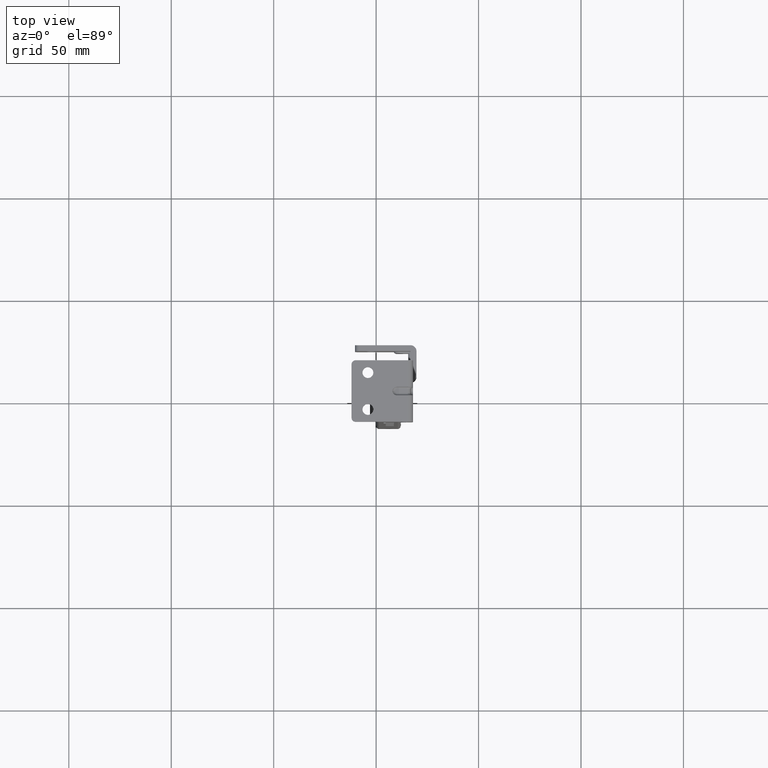
[diagram: clean part render]
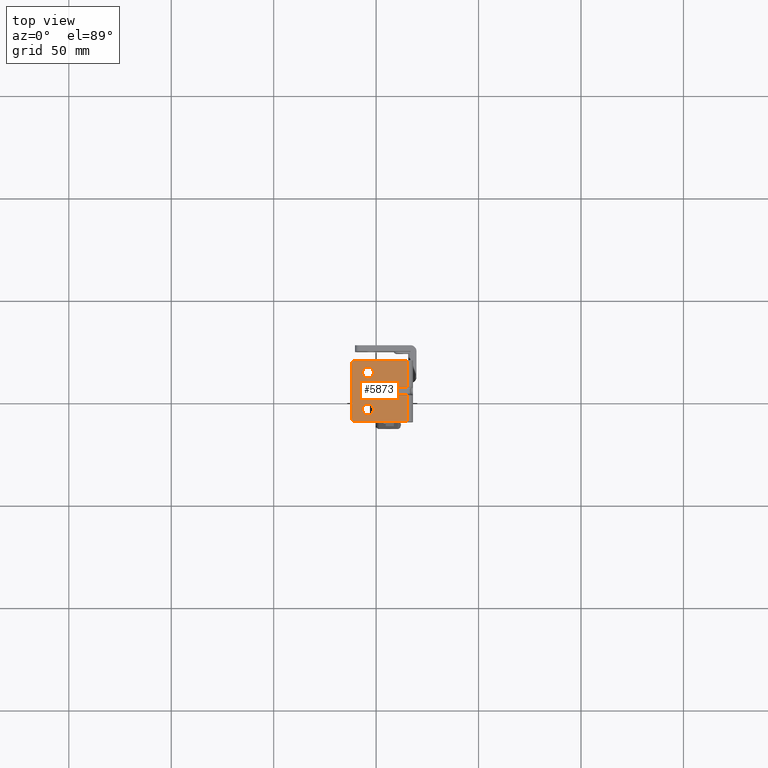
[diagram: same view with one face highlighted and labeled with its STEP entity id]
A machine part, top view. The second image highlights one B-rep face of the part: STEP entity #5873.
In plain terms, the highlighted face is a freeform B-spline surface patch.
Its self-contained STEP definition (entity closure, byte-faithful):
#3182=CARTESIAN_POINT('',(-3.792083395588336,6.358169065664890,338.0));
#3183=VERTEX_POINT('',#3182);
#3189=CARTESIAN_POINT('',(-1.350000000000000,9.0,338.0));
#3190=VERTEX_POINT('',#3189);
#3191=CARTESIAN_POINT('',(-1.350000000000000,9.0,338.0));
#3192=CARTESIAN_POINT('',(-1.350000000000000,6.550365198469068,338.000000000000060));
#3193=CARTESIAN_POINT('',(-3.792083395588336,6.358169065664890,338.000000000000060));
#3201=(BOUNDED_CURVE()B_SPLINE_CURVE(2,(#3191,#3192,#3193),.UNSPECIFIED.,.F.,.U.)B_SPLINE_CURVE_WITH_KNOTS((3,3),(0.0,0.236331300537657),.UNSPECIFIED.)CURVE()GEOMETRIC_REPRESENTATION_ITEM()RATIONAL_B_SPLINE_CURVE((1.0,0.723120658716625,0.969723355973328))REPRESENTATION_ITEM(''));
#3202=EDGE_CURVE('',#3190,#3183,#3201,.T.);
#3204=CARTESIAN_POINT('',(-4.207916604411664,11.641830934335109,338.0));
#3205=VERTEX_POINT('',#3204);
#3206=CARTESIAN_POINT('',(-4.207916604411664,11.641830934335106,338.000000000000060));
#3207=CARTESIAN_POINT('',(-4.104118784306600,11.649999999999995,338.0));
#3208=CARTESIAN_POINT('',(-4.0,11.650000000000000,338.0));
#3209=CARTESIAN_POINT('',(-1.350000000000000,11.649999999999999,338.0));
#3210=CARTESIAN_POINT('',(-1.350000000000000,9.0,338.0));
#3218=(BOUNDED_CURVE()B_SPLINE_CURVE(2,(#3206,#3207,#3208,#3209,#3210),.UNSPECIFIED.,.F.,.U.)B_SPLINE_CURVE_WITH_KNOTS((3,2,3),(0.736331300537657,0.750000000000000,1.0),.UNSPECIFIED.)CURVE()GEOMETRIC_REPRESENTATION_ITEM()RATIONAL_B_SPLINE_CURVE((0.969723355973328,0.983986122469922,1.0,0.707106781186548,1.0))REPRESENTATION_ITEM(''));
#3219=EDGE_CURVE('',#3205,#3190,#3218,.T.);
#3295=CARTESIAN_POINT('',(-6.650000000000000,9.0,338.0));
#3296=VERTEX_POINT('',#3295);
#3297=CARTESIAN_POINT('',(-6.650000000000000,9.0,338.0));
#3298=CARTESIAN_POINT('',(-6.650000000000000,11.449634801530946,338.000000000000060));
#3299=CARTESIAN_POINT('',(-4.207916604411664,11.641830934335111,338.000000000000060));
#3307=(BOUNDED_CURVE()B_SPLINE_CURVE(2,(#3297,#3298,#3299),.UNSPECIFIED.,.F.,.U.)B_SPLINE_CURVE_WITH_KNOTS((3,3),(0.500000000000000,0.736331300537658),.UNSPECIFIED.)CURVE()GEOMETRIC_REPRESENTATION_ITEM()RATIONAL_B_SPLINE_CURVE((1.0,0.723120658716624,0.969723355973330))REPRESENTATION_ITEM(''));
#3308=EDGE_CURVE('',#3296,#3205,#3307,.T.);
#3310=CARTESIAN_POINT('',(-3.792083395588336,6.358169065664890,338.000000000000060));
#3311=CARTESIAN_POINT('',(-3.895881215693400,6.350000000000000,338.0));
#3312=CARTESIAN_POINT('',(-4.0,6.350000000000000,338.0));
#3313=CARTESIAN_POINT('',(-6.649999999999999,6.350000000000000,338.0));
#3314=CARTESIAN_POINT('',(-6.650000000000000,9.0,338.0));
#3322=(BOUNDED_CURVE()B_SPLINE_CURVE(2,(#3310,#3311,#3312,#3313,#3314),.UNSPECIFIED.,.F.,.U.)B_SPLINE_CURVE_WITH_KNOTS((3,2,3),(0.236331300537657,0.250000000000000,0.500000000000000),.UNSPECIFIED.)CURVE()GEOMETRIC_REPRESENTATION_ITEM()RATIONAL_B_SPLINE_CURVE((0.969723355973328,0.983986122469922,1.0,0.707106781186548,1.0))REPRESENTATION_ITEM(''));
#3323=EDGE_CURVE('',#3183,#3296,#3322,.T.);
#3364=CARTESIAN_POINT('',(-3.792083395588336,-11.641830934335109,338.000000000000110));
#3365=VERTEX_POINT('',#3364);
#3371=CARTESIAN_POINT('',(-1.350000000000000,-9.0,338.0));
#3372=VERTEX_POINT('',#3371);
#3373=CARTESIAN_POINT('',(-1.350000000000000,-9.0,338.0));
#3374=CARTESIAN_POINT('',(-1.350000000000000,-11.449634801530932,338.000000000000060));
#3375=CARTESIAN_POINT('',(-3.792083395588336,-11.641830934335106,338.000000000000060));
#3383=(BOUNDED_CURVE()B_SPLINE_CURVE(2,(#3373,#3374,#3375),.UNSPECIFIED.,.F.,.U.)B_SPLINE_CURVE_WITH_KNOTS((3,3),(0.0,0.236331300537657),.UNSPECIFIED.)CURVE()GEOMETRIC_REPRESENTATION_ITEM()RATIONAL_B_SPLINE_CURVE((1.0,0.723120658716625,0.969723355973328))REPRESENTATION_ITEM(''));
#3384=EDGE_CURVE('',#3372,#3365,#3383,.T.);
#3386=CARTESIAN_POINT('',(-4.207916604411664,-6.358169065664891,338.0));
#3387=VERTEX_POINT('',#3386);
#3388=CARTESIAN_POINT('',(-4.207916604411664,-6.358169065664891,338.000000000000060));
#3389=CARTESIAN_POINT('',(-4.104118784306600,-6.350000000000001,338.0));
#3390=CARTESIAN_POINT('',(-4.0,-6.350000000000000,338.0));
#3391=CARTESIAN_POINT('',(-1.350000000000000,-6.350000000000000,338.0));
#3392=CARTESIAN_POINT('',(-1.350000000000000,-9.0,338.0));
#3400=(BOUNDED_CURVE()B_SPLINE_CURVE(2,(#3388,#3389,#3390,#3391,#3392),.UNSPECIFIED.,.F.,.U.)B_SPLINE_CURVE_WITH_KNOTS((3,2,3),(0.736331300537657,0.750000000000000,1.0),.UNSPECIFIED.)CURVE()GEOMETRIC_REPRESENTATION_ITEM()RATIONAL_B_SPLINE_CURVE((0.969723355973328,0.983986122469922,1.0,0.707106781186548,1.0))REPRESENTATION_ITEM(''));
#3401=EDGE_CURVE('',#3387,#3372,#3400,.T.);
#3477=CARTESIAN_POINT('',(-6.650000000000000,-9.0,338.0));
#3478=VERTEX_POINT('',#3477);
#3479=CARTESIAN_POINT('',(-6.650000000000000,-9.0,338.0));
#3480=CARTESIAN_POINT('',(-6.650000000000000,-6.550365198469052,338.000000000000060));
#3481=CARTESIAN_POINT('',(-4.207916604411664,-6.358169065664891,338.000000000000060));
#3489=(BOUNDED_CURVE()B_SPLINE_CURVE(2,(#3479,#3480,#3481),.UNSPECIFIED.,.F.,.U.)B_SPLINE_CURVE_WITH_KNOTS((3,3),(0.500000000000000,0.736331300537658),.UNSPECIFIED.)CURVE()GEOMETRIC_REPRESENTATION_ITEM()RATIONAL_B_SPLINE_CURVE((1.0,0.723120658716624,0.969723355973330))REPRESENTATION_ITEM(''));
#3490=EDGE_CURVE('',#3478,#3387,#3489,.T.);
#3492=CARTESIAN_POINT('',(-3.792083395588336,-11.641830934335106,338.000000000000060));
#3493=CARTESIAN_POINT('',(-3.895881215693400,-11.649999999999995,338.0));
#3494=CARTESIAN_POINT('',(-4.0,-11.650000000000000,338.0));
#3495=CARTESIAN_POINT('',(-6.649999999999999,-11.649999999999999,338.0));
#3496=CARTESIAN_POINT('',(-6.650000000000000,-9.0,338.0));
#3504=(BOUNDED_CURVE()B_SPLINE_CURVE(2,(#3492,#3493,#3494,#3495,#3496),.UNSPECIFIED.,.F.,.U.)B_SPLINE_CURVE_WITH_KNOTS((3,2,3),(0.236331300537657,0.250000000000000,0.500000000000000),.UNSPECIFIED.)CURVE()GEOMETRIC_REPRESENTATION_ITEM()RATIONAL_B_SPLINE_CURVE((0.969723355973328,0.983986122469922,1.0,0.707106781186548,1.0))REPRESENTATION_ITEM(''));
#3505=EDGE_CURVE('',#3365,#3478,#3504,.T.);
#4475=CARTESIAN_POINT('',(9.999994017453281,2.0,338.0));
#4476=VERTEX_POINT('',#4475);
#4482=CARTESIAN_POINT('',(9.999994017453281,-1.999999999999890,338.0));
#4483=VERTEX_POINT('',#4482);
#4484=CARTESIAN_POINT('',(9.999994017453281,2.000000000000111,338.0));
#4485=CARTESIAN_POINT('',(7.999994017453280,2.000000000000112,338.0));
#4486=CARTESIAN_POINT('',(7.999994017453280,1.110223E-013,338.0));
#4487=CARTESIAN_POINT('',(7.999994017453280,-1.999999999999889,338.0));
#4488=CARTESIAN_POINT('',(9.999994017453281,-1.999999999999889,338.0));
#4496=(BOUNDED_CURVE()B_SPLINE_CURVE(2,(#4484,#4485,#4486,#4487,#4488),.UNSPECIFIED.,.F.,.U.)B_SPLINE_CURVE_WITH_KNOTS((3,2,3),(0.0,0.500000000000000,1.0),.UNSPECIFIED.)CURVE()GEOMETRIC_REPRESENTATION_ITEM()RATIONAL_B_SPLINE_CURVE((1.0,0.707106781186548,1.0,0.707106781186548,1.0))REPRESENTATION_ITEM(''));
#4497=EDGE_CURVE('',#4476,#4483,#4496,.T.);
#4588=CARTESIAN_POINT('',(15.100006000000000,2.0,338.0));
#4589=VERTEX_POINT('',#4588);
#4603=CARTESIAN_POINT('',(9.999994017453281,2.0,338.0));
#4604=CARTESIAN_POINT('',(15.100006000000000,2.0,338.0));
#4605=QUASI_UNIFORM_CURVE('',1,(#4603,#4604),.UNSPECIFIED.,.F.,.U.);
#4606=EDGE_CURVE('',#4476,#4589,#4605,.T.);
#4621=CARTESIAN_POINT('',(15.100006000000000,-1.999999999999890,338.0));
#4622=VERTEX_POINT('',#4621);
#4623=CARTESIAN_POINT('',(9.999994017453281,-1.999999999999890,338.0));
#4624=CARTESIAN_POINT('',(15.100006000000000,-1.999999999999890,338.0));
#4625=QUASI_UNIFORM_CURVE('',1,(#4623,#4624),.UNSPECIFIED.,.F.,.U.);
#4626=EDGE_CURVE('',#4483,#4622,#4625,.T.);
#5261=CARTESIAN_POINT('',(-10.0,-15.0,338.0));
#5262=VERTEX_POINT('',#5261);
#5268=CARTESIAN_POINT('',(-12.0,-13.0,338.0));
#5269=VERTEX_POINT('',#5268);
#5270=CARTESIAN_POINT('',(-10.0,-15.0,338.0));
#5271=CARTESIAN_POINT('',(-12.0,-14.999999999999995,338.0));
#5272=CARTESIAN_POINT('',(-12.0,-13.0,338.0));
#5280=(BOUNDED_CURVE()B_SPLINE_CURVE(2,(#5270,#5271,#5272),.UNSPECIFIED.,.F.,.U.)CURVE()GEOMETRIC_REPRESENTATION_ITEM()QUASI_UNIFORM_CURVE()RATIONAL_B_SPLINE_CURVE((1.0,0.707106781186548,1.0))REPRESENTATION_ITEM(''));
#5281=EDGE_CURVE('',#5262,#5269,#5280,.T.);
#5322=CARTESIAN_POINT('',(-12.0,13.0,338.0));
#5323=VERTEX_POINT('',#5322);
#5329=CARTESIAN_POINT('',(-10.0,15.0,338.0));
#5330=VERTEX_POINT('',#5329);
#5331=CARTESIAN_POINT('',(-12.0,13.0,338.0));
#5332=CARTESIAN_POINT('',(-12.0,14.999999999999995,338.0));
#5333=CARTESIAN_POINT('',(-10.0,15.0,338.0));
#5341=(BOUNDED_CURVE()B_SPLINE_CURVE(2,(#5331,#5332,#5333),.UNSPECIFIED.,.F.,.U.)CURVE()GEOMETRIC_REPRESENTATION_ITEM()QUASI_UNIFORM_CURVE()RATIONAL_B_SPLINE_CURVE((1.0,0.707106781186548,1.0))REPRESENTATION_ITEM(''));
#5342=EDGE_CURVE('',#5323,#5330,#5341,.T.);
#5506=CARTESIAN_POINT('',(15.100006000000000,-15.0,338.0));
#5507=VERTEX_POINT('',#5506);
#5521=CARTESIAN_POINT('',(-10.0,-15.0,338.0));
#5522=CARTESIAN_POINT('',(15.100006000000000,-15.0,338.0));
#5523=QUASI_UNIFORM_CURVE('',1,(#5521,#5522),.UNSPECIFIED.,.F.,.U.);
#5524=EDGE_CURVE('',#5262,#5507,#5523,.T.);
#5535=CARTESIAN_POINT('',(15.100006000000000,15.0,338.0));
#5536=VERTEX_POINT('',#5535);
#5537=CARTESIAN_POINT('',(-10.0,15.0,338.0));
#5538=CARTESIAN_POINT('',(15.100006000000000,15.0,338.0));
#5539=QUASI_UNIFORM_CURVE('',1,(#5537,#5538),.UNSPECIFIED.,.F.,.U.);
#5540=EDGE_CURVE('',#5330,#5536,#5539,.T.);
#5822=CARTESIAN_POINT('',(15.100006000000000,-1.999999999999890,338.0));
#5823=CARTESIAN_POINT('',(15.100006000000000,-15.0,338.0));
#5824=QUASI_UNIFORM_CURVE('',1,(#5822,#5823),.UNSPECIFIED.,.F.,.U.);
#5825=EDGE_CURVE('',#4622,#5507,#5824,.T.);
#5836=CARTESIAN_POINT('',(16.453651501570398,16.498499941854181,338.0));
#5837=CARTESIAN_POINT('',(-13.353645986156270,16.498499941854181,338.0));
#5838=CARTESIAN_POINT('',(16.453651501570398,-16.498500746516889,338.0));
#5839=CARTESIAN_POINT('',(-13.353645986156270,-16.498500746516889,338.0));
#5840=B_SPLINE_SURFACE_WITH_KNOTS('',1,1,((#5836,#5838),(#5837,#5839)),.UNSPECIFIED.,.F.,.F.,.U.,(2,2),(2,2),(0.0,29.807297487726661),(0.0,32.997000688371060),.UNSPECIFIED.);
#5841=ORIENTED_EDGE('',*,*,#4606,.T.);
#5842=CARTESIAN_POINT('',(15.100006000000000,15.0,338.0));
#5843=CARTESIAN_POINT('',(15.100006000000000,2.0,338.0));
#5844=QUASI_UNIFORM_CURVE('',1,(#5842,#5843),.UNSPECIFIED.,.F.,.U.);
#5845=EDGE_CURVE('',#5536,#4589,#5844,.T.);
#5846=ORIENTED_EDGE('',*,*,#5845,.F.);
#5847=ORIENTED_EDGE('',*,*,#5540,.F.);
#5848=ORIENTED_EDGE('',*,*,#5342,.F.);
#5849=CARTESIAN_POINT('',(-12.0,13.0,338.0));
#5850=CARTESIAN_POINT('',(-12.0,-13.0,338.0));
#5851=QUASI_UNIFORM_CURVE('',1,(#5849,#5850),.UNSPECIFIED.,.F.,.U.);
#5852=EDGE_CURVE('',#5323,#5269,#5851,.T.);
#5853=ORIENTED_EDGE('',*,*,#5852,.T.);
#5854=ORIENTED_EDGE('',*,*,#5281,.F.);
#5855=ORIENTED_EDGE('',*,*,#5524,.T.);
#5856=ORIENTED_EDGE('',*,*,#5825,.F.);
#5857=ORIENTED_EDGE('',*,*,#4626,.F.);
#5858=ORIENTED_EDGE('',*,*,#4497,.F.);
#5859=EDGE_LOOP('',(#5841,#5846,#5847,#5848,#5853,#5854,#5855,#5856,#5857,#5858));
#5860=FACE_OUTER_BOUND('',#5859,.T.);
#5861=ORIENTED_EDGE('',*,*,#3490,.T.);
#5862=ORIENTED_EDGE('',*,*,#3401,.T.);
#5863=ORIENTED_EDGE('',*,*,#3384,.T.);
#5864=ORIENTED_EDGE('',*,*,#3505,.T.);
#5865=EDGE_LOOP('',(#5861,#5862,#5863,#5864));
#5866=FACE_BOUND('',#5865,.T.);
#5867=ORIENTED_EDGE('',*,*,#3308,.T.);
#5868=ORIENTED_EDGE('',*,*,#3219,.T.);
#5869=ORIENTED_EDGE('',*,*,#3202,.T.);
#5870=ORIENTED_EDGE('',*,*,#3323,.T.);
#5871=EDGE_LOOP('',(#5867,#5868,#5869,#5870));
#5872=FACE_BOUND('',#5871,.T.);
#5873=ADVANCED_FACE('',(#5860,#5866,#5872),#5840,.T.);